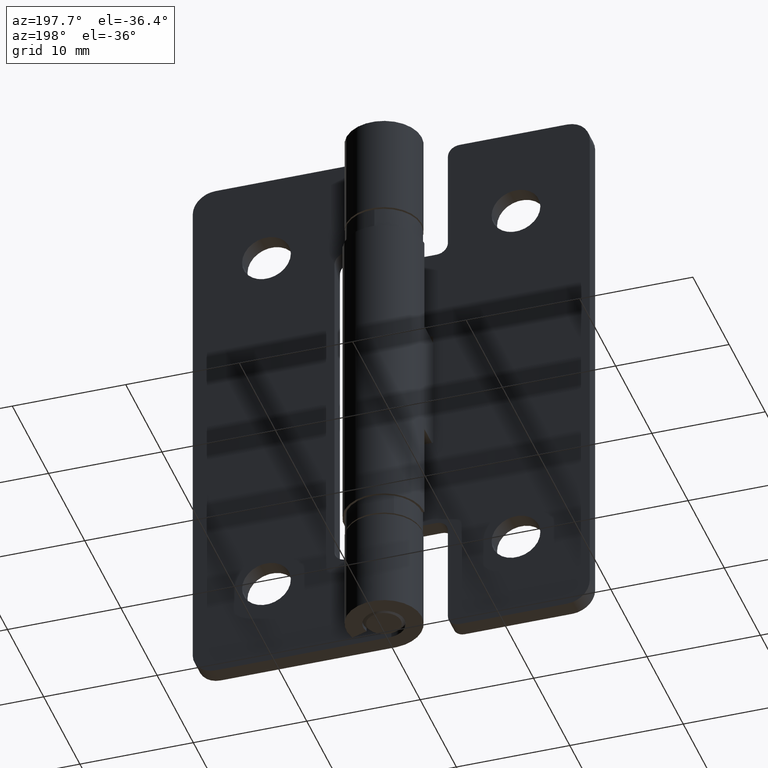
[diagram: clean part render]
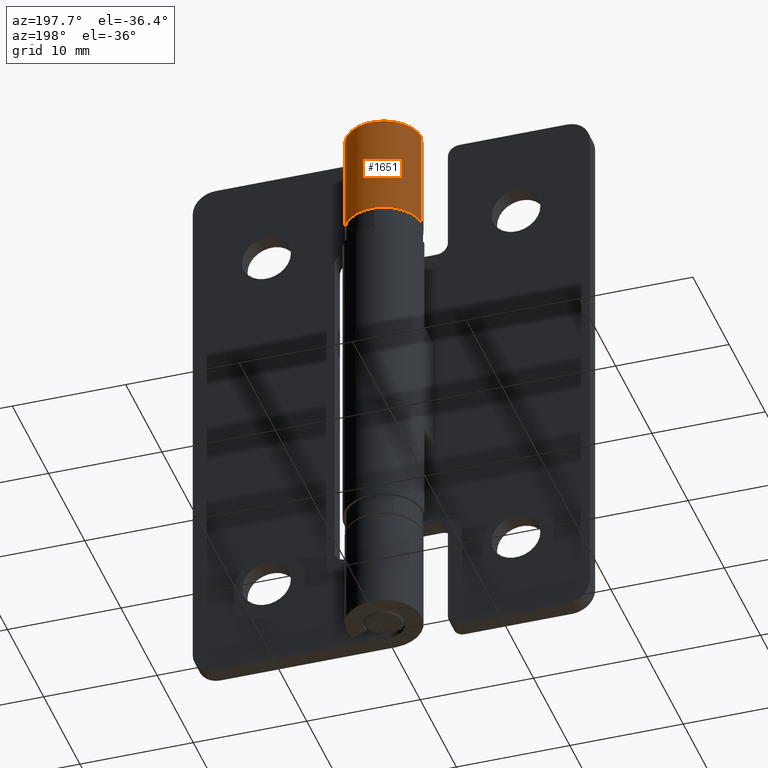
[diagram: same view with one face highlighted and labeled with its STEP entity id]
A machine part, auxiliary view. The second image highlights one B-rep face of the part: STEP entity #1651.
In plain terms, the highlighted cylindrical surface (partial cylindrical patch) has radius 3.325 mm, axis along (0, 0, -1).
Its self-contained STEP definition (entity closure, byte-faithful):
#156=LINE('',#2669,#278);
#157=LINE('',#2673,#279);
#278=VECTOR('',#2140,9.);
#279=VECTOR('',#2143,9.);
#446=FACE_OUTER_BOUND('',#557,.T.);
#557=EDGE_LOOP('',(#1311,#1312,#1313,#1314));
#677=CIRCLE('',#1792,3.325);
#678=CIRCLE('',#1793,3.325);
#813=VERTEX_POINT('',#2667);
#814=VERTEX_POINT('',#2668);
#815=VERTEX_POINT('',#2670);
#816=VERTEX_POINT('',#2672);
#999=EDGE_CURVE('',#813,#814,#156,.T.);
#1000=EDGE_CURVE('',#814,#815,#677,.T.);
#1001=EDGE_CURVE('',#816,#815,#157,.T.);
#1002=EDGE_CURVE('',#813,#816,#678,.T.);
#1311=ORIENTED_EDGE('',*,*,#999,.T.);
#1312=ORIENTED_EDGE('',*,*,#1000,.T.);
#1313=ORIENTED_EDGE('',*,*,#1001,.F.);
#1314=ORIENTED_EDGE('',*,*,#1002,.F.);
#1587=CYLINDRICAL_SURFACE('',#1791,3.325);
#1651=ADVANCED_FACE('',(#446),#1587,.T.);
#1791=AXIS2_PLACEMENT_3D('',#2666,#2138,#2139);
#1792=AXIS2_PLACEMENT_3D('',#2671,#2141,#2142);
#1793=AXIS2_PLACEMENT_3D('',#2674,#2144,#2145);
#2138=DIRECTION('center_axis',(-1.,0.,0.));
#2139=DIRECTION('ref_axis',(0.,0.,1.));
#2140=DIRECTION('',(-1.,0.,0.));
#2141=DIRECTION('center_axis',(1.,0.,0.));
#2142=DIRECTION('ref_axis',(0.,0.,-1.));
#2143=DIRECTION('',(-1.,0.,0.));
#2144=DIRECTION('center_axis',(1.,0.,0.));
#2145=DIRECTION('ref_axis',(0.,0.,-1.));
#2666=CARTESIAN_POINT('Origin',(25.,1.48438011014773E-10,4.23780151595499E-10));
#2667=CARTESIAN_POINT('',(25.,-1.09917355357834,-3.1380634945979));
#2668=CARTESIAN_POINT('',(16.,-1.09917355357834,-3.1380634945979));
#2669=CARTESIAN_POINT('',(25.,-1.09917355357834,-3.1380634945979));
#2670=CARTESIAN_POINT('',(16.,1.48432047902824E-10,3.32500000000005));
#2671=CARTESIAN_POINT('Origin',(16.,1.48438011014773E-10,4.23780151595499E-10));
#2672=CARTESIAN_POINT('',(25.,1.48438002251368E-10,3.32500000042378));
#2673=CARTESIAN_POINT('',(25.,1.48438002251368E-10,3.32500000042378));
#2674=CARTESIAN_POINT('Origin',(25.,1.48438011014773E-10,4.23780151595499E-10));